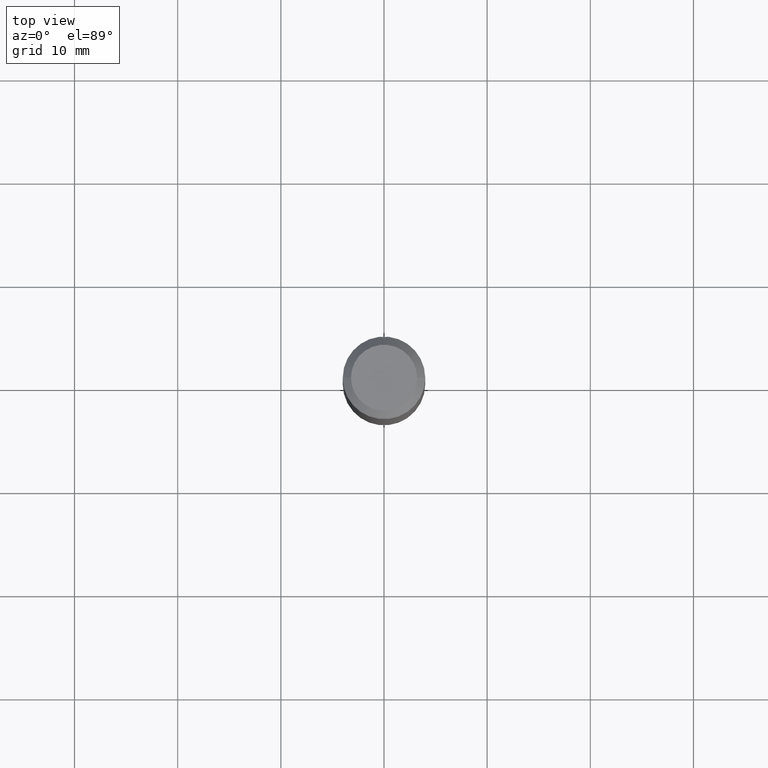
[diagram: clean part render]
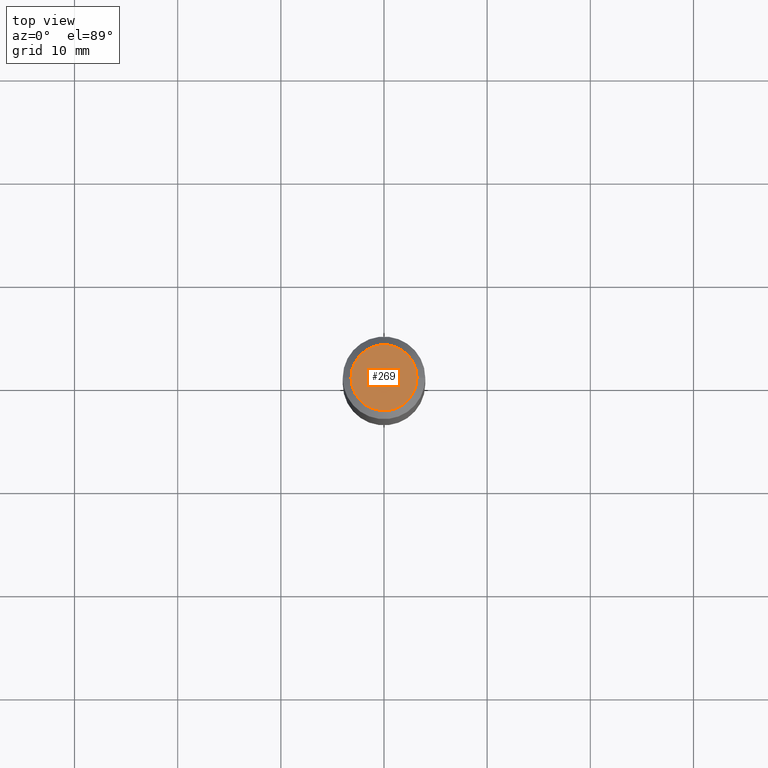
[diagram: same view with one face highlighted and labeled with its STEP entity id]
A machine part, top view. The second image highlights one B-rep face of the part: STEP entity #269.
In plain terms, the highlighted planar face has unit normal (0, -0, -1).
Its self-contained STEP definition (entity closure, byte-faithful):
#3 = FACE_OUTER_BOUND ( 'NONE', #315, .T. ) ;
#6 = CARTESIAN_POINT ( 'NONE',  ( -0.1260000000000000009, 9.348441284752484904E-16, 3.860086710906110326E-18 ) ) ;
#30 = EDGE_CURVE ( 'NONE', #169, #203, #278, .T. ) ;
#93 = EDGE_CURVE ( 'NONE', #203, #169, #425, .T. ) ;
#127 = AXIS2_PLACEMENT_3D ( 'NONE', #219, #292, #331 ) ;
#138 = CARTESIAN_POINT ( 'NONE',  ( -4.719860820353096954E-47, 6.738710358733626979E-33, 1.930043355456227940E-18 ) ) ;
#139 = CARTESIAN_POINT ( 'NONE',  ( -9.439721640706193907E-47, 1.347742071746725396E-32, 3.860086710912455880E-18 ) ) ;
#169 = VERTEX_POINT ( 'NONE', #410 ) ;
#188 = DIRECTION ( 'NONE',  ( 1.000000000000000000, -6.982962677686265922E-15, 4.876281427513067258E-29 ) ) ;
#203 = VERTEX_POINT ( 'NONE', #6 ) ;
#219 = CARTESIAN_POINT ( 'NONE',  ( -9.439721640706193907E-47, 1.347742071746725396E-32, 3.860086710912455880E-18 ) ) ;
#269 = ADVANCED_FACE ( 'NONE', ( #3 ), #330, .F. ) ;
#278 = CIRCLE ( 'NONE', #127, 0.1260000000000000009 ) ;
#292 = DIRECTION ( 'NONE',  ( -2.445468806185136597E-29, 3.491481338843145583E-15, 1.000000000000000000 ) ) ;
#293 = DIRECTION ( 'NONE',  ( -1.000000000000000000, 6.982962677686265922E-15, -4.876176775795935793E-29 ) ) ;
#315 = EDGE_LOOP ( 'NONE', ( #436, #319 ) ) ;
#319 = ORIENTED_EDGE ( 'NONE', *, *, #30, .T. ) ;
#324 = DIRECTION ( 'NONE',  ( -2.445468806185136597E-29, 3.491481338843145583E-15, 1.000000000000000000 ) ) ;
#330 = PLANE ( 'NONE',  #434 ) ;
#331 = DIRECTION ( 'NONE',  ( 1.000000000000000000, -6.982962677686265922E-15, 4.876281427513067258E-29 ) ) ;
#410 = CARTESIAN_POINT ( 'NONE',  ( 0.1260000000000000009, -1.027466422270894443E-15, 3.860086710919124220E-18 ) ) ;
#425 = CIRCLE ( 'NONE', #513, 0.1260000000000000009 ) ;
#434 = AXIS2_PLACEMENT_3D ( 'NONE', #138, #479, #293 ) ;
#436 = ORIENTED_EDGE ( 'NONE', *, *, #93, .T. ) ;
#479 = DIRECTION ( 'NONE',  ( 2.438088387897960049E-29, -3.491481338843145188E-15, -1.000000000000000000 ) ) ;
#513 = AXIS2_PLACEMENT_3D ( 'NONE', #139, #324, #188 ) ;